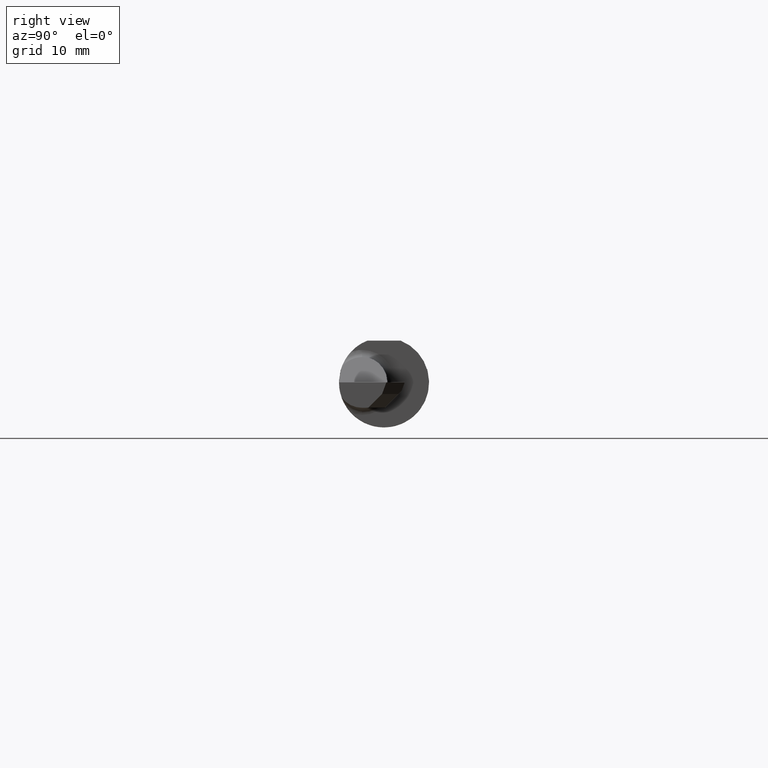
[diagram: clean part render]
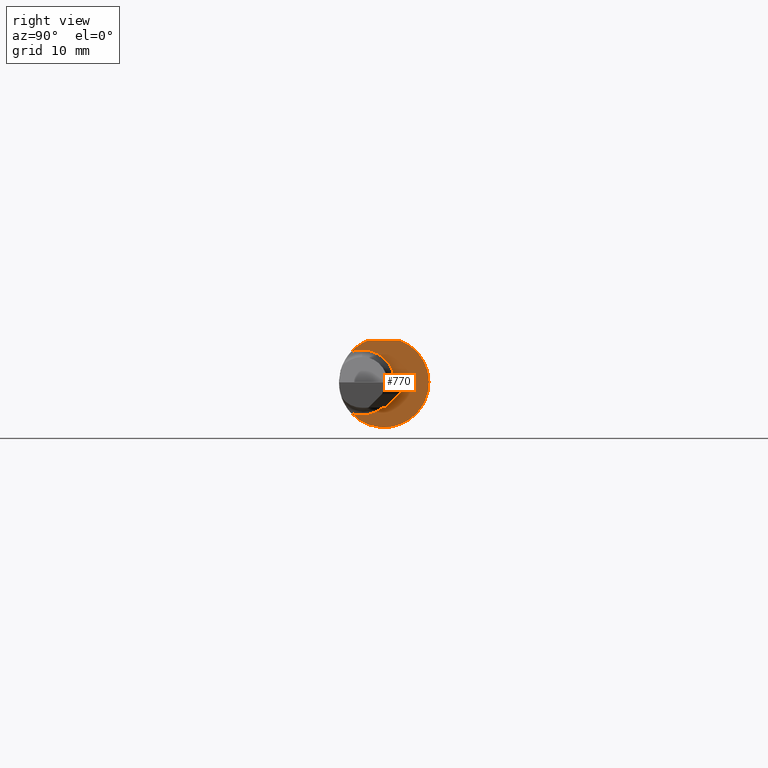
[diagram: same view with one face highlighted and labeled with its STEP entity id]
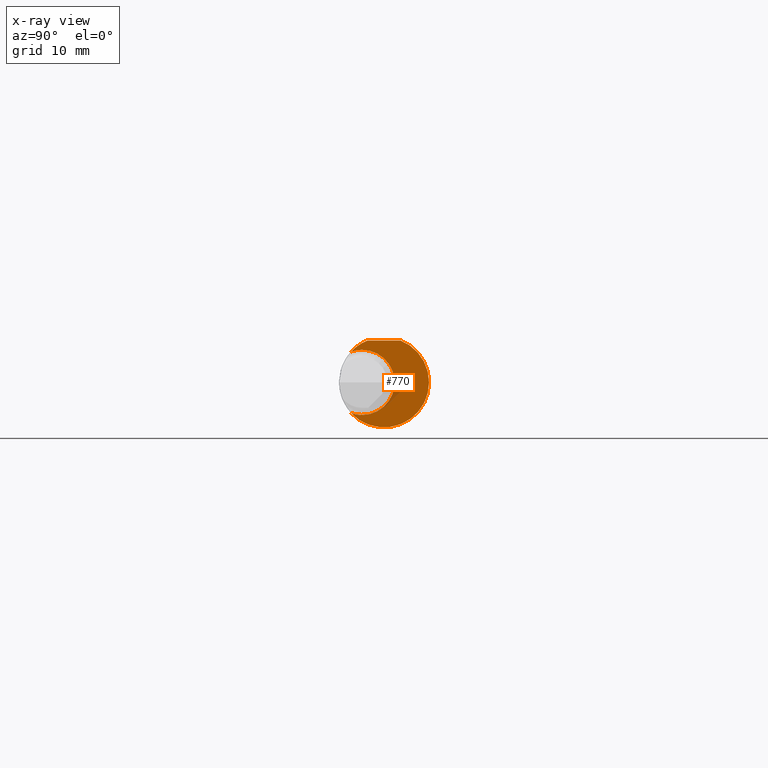
[diagram: x-ray of the same camera — body ghosted, the highlighted face saturated]
A machine part, right view. The second image highlights one B-rep face of the part: STEP entity #770.
The next image is the same camera in x-ray: the body ghosted, the highlighted face saturated — about 5% of this face is hidden behind the body in this view.
In plain terms, the highlighted planar face has unit normal (1, 0, 0).
Its self-contained STEP definition (entity closure, byte-faithful):
#16 = AXIS2_PLACEMENT_3D ( 'NONE', #613, #911, #219 ) ;
#17 = CIRCLE ( 'NONE', #794, 0.1560999999999999888 ) ;
#21 = CARTESIAN_POINT ( 'NONE',  ( 2.020000000000000018, 0.1749999999999999889, 0.1450999999999999512 ) ) ;
#36 = AXIS2_PLACEMENT_3D ( 'NONE', #355, #665, #678 ) ;
#52 = CARTESIAN_POINT ( 'NONE',  ( 2.020000000000000018, -0.07609999999999990383, 0.000000000000000000 ) ) ;
#67 = CARTESIAN_POINT ( 'NONE',  ( 2.020000000000000018, 0.000000000000000000, 0.000000000000000000 ) ) ;
#80 = AXIS2_PLACEMENT_3D ( 'NONE', #52, #353, #580 ) ;
#152 = ORIENTED_EDGE ( 'NONE', *, *, #271, .T. ) ;
#170 = VERTEX_POINT ( 'NONE', #693 ) ;
#187 = EDGE_CURVE ( 'NONE', #170, #817, #505, .T. ) ;
#204 = VECTOR ( 'NONE', #540, 39.37007874015748143 ) ;
#219 = DIRECTION ( 'NONE',  ( 0.000000000000000000, 0.000000000000000000, -1.000000000000000000 ) ) ;
#226 = CARTESIAN_POINT ( 'NONE',  ( 2.020000000000000018, 0.05756040305626781289, 0.1450999999999999512 ) ) ;
#237 = LINE ( 'NONE', #21, #204 ) ;
#241 = ORIENTED_EDGE ( 'NONE', *, *, #821, .T. ) ;
#271 = EDGE_CURVE ( 'NONE', #740, #850, #17, .T. ) ;
#297 = CARTESIAN_POINT ( 'NONE',  ( 2.020000000000000018, -0.07609999999999990383, -0.1130000000000000032 ) ) ;
#338 = ORIENTED_EDGE ( 'NONE', *, *, #643, .T. ) ;
#353 = DIRECTION ( 'NONE',  ( -1.000000000000000000, -0.000000000000000000, -0.000000000000000000 ) ) ;
#355 = CARTESIAN_POINT ( 'NONE',  ( 2.020000000000000018, -0.07609999999999990383, 0.000000000000000000 ) ) ;
#366 = CARTESIAN_POINT ( 'NONE',  ( 2.020000000000000018, 0.000000000000000000, 0.000000000000000000 ) ) ;
#374 = EDGE_CURVE ( 'NONE', #850, #382, #237, .T. ) ;
#382 = VERTEX_POINT ( 'NONE', #851 ) ;
#396 = ORIENTED_EDGE ( 'NONE', *, *, #187, .T. ) ;
#429 = VERTEX_POINT ( 'NONE', #795 ) ;
#490 = AXIS2_PLACEMENT_3D ( 'NONE', #525, #854, #698 ) ;
#505 = CIRCLE ( 'NONE', #80, 0.1130000000000000032 ) ;
#525 = CARTESIAN_POINT ( 'NONE',  ( 2.020000000000000018, 0.2119000000000000883, 0.000000000000000000 ) ) ;
#540 = DIRECTION ( 'NONE',  ( 0.000000000000000000, -1.000000000000000000, 0.000000000000000000 ) ) ;
#542 = CARTESIAN_POINT ( 'NONE',  ( 2.020000000000000018, -0.1142537450722733300, -0.1063639588251582974 ) ) ;
#547 = EDGE_CURVE ( 'NONE', #817, #740, #701, .T. ) ;
#580 = DIRECTION ( 'NONE',  ( 0.000000000000000000, 0.000000000000000000, -1.000000000000000000 ) ) ;
#603 = AXIS2_PLACEMENT_3D ( 'NONE', #366, #884, #958 ) ;
#613 = CARTESIAN_POINT ( 'NONE',  ( 2.020000000000000018, -0.07609999999999990383, 0.000000000000000000 ) ) ;
#643 = EDGE_CURVE ( 'NONE', #382, #429, #676, .T. ) ;
#665 = DIRECTION ( 'NONE',  ( -1.000000000000000000, -0.000000000000000000, -0.000000000000000000 ) ) ;
#676 = CIRCLE ( 'NONE', #603, 0.1560999999999999888 ) ;
#678 = DIRECTION ( 'NONE',  ( 0.000000000000000000, 0.000000000000000000, -1.000000000000000000 ) ) ;
#679 = ORIENTED_EDGE ( 'NONE', *, *, #547, .T. ) ;
#681 = DIRECTION ( 'NONE',  ( 1.000000000000000000, 0.000000000000000000, 0.000000000000000000 ) ) ;
#693 = CARTESIAN_POINT ( 'NONE',  ( 2.020000000000000018, -0.07609999999999988995, 0.1130000000000000032 ) ) ;
#698 = DIRECTION ( 'NONE',  ( 0.000000000000000000, 0.000000000000000000, -1.000000000000000000 ) ) ;
#701 = CIRCLE ( 'NONE', #36, 0.1130000000000000032 ) ;
#740 = VERTEX_POINT ( 'NONE', #542 ) ;
#756 = FACE_OUTER_BOUND ( 'NONE', #829, .T. ) ;
#770 = ADVANCED_FACE ( 'NONE', ( #756 ), #843, .T. ) ;
#794 = AXIS2_PLACEMENT_3D ( 'NONE', #67, #681, #980 ) ;
#795 = CARTESIAN_POINT ( 'NONE',  ( 2.020000000000000018, -0.1142537450722733300, 0.1063639588251582974 ) ) ;
#817 = VERTEX_POINT ( 'NONE', #297 ) ;
#821 = EDGE_CURVE ( 'NONE', #429, #170, #834, .T. ) ;
#829 = EDGE_LOOP ( 'NONE', ( #338, #241, #396, #679, #152, #962 ) ) ;
#834 = CIRCLE ( 'NONE', #16, 0.1130000000000000032 ) ;
#843 = PLANE ( 'NONE',  #490 ) ;
#850 = VERTEX_POINT ( 'NONE', #226 ) ;
#851 = CARTESIAN_POINT ( 'NONE',  ( 2.020000000000000018, -0.05756040305626783371, 0.1450999999999999512 ) ) ;
#854 = DIRECTION ( 'NONE',  ( 1.000000000000000000, 0.000000000000000000, 0.000000000000000000 ) ) ;
#884 = DIRECTION ( 'NONE',  ( 1.000000000000000000, 0.000000000000000000, 0.000000000000000000 ) ) ;
#911 = DIRECTION ( 'NONE',  ( -1.000000000000000000, -0.000000000000000000, -0.000000000000000000 ) ) ;
#958 = DIRECTION ( 'NONE',  ( 0.000000000000000000, 0.000000000000000000, -1.000000000000000000 ) ) ;
#962 = ORIENTED_EDGE ( 'NONE', *, *, #374, .T. ) ;
#980 = DIRECTION ( 'NONE',  ( 0.000000000000000000, 0.000000000000000000, -1.000000000000000000 ) ) ;